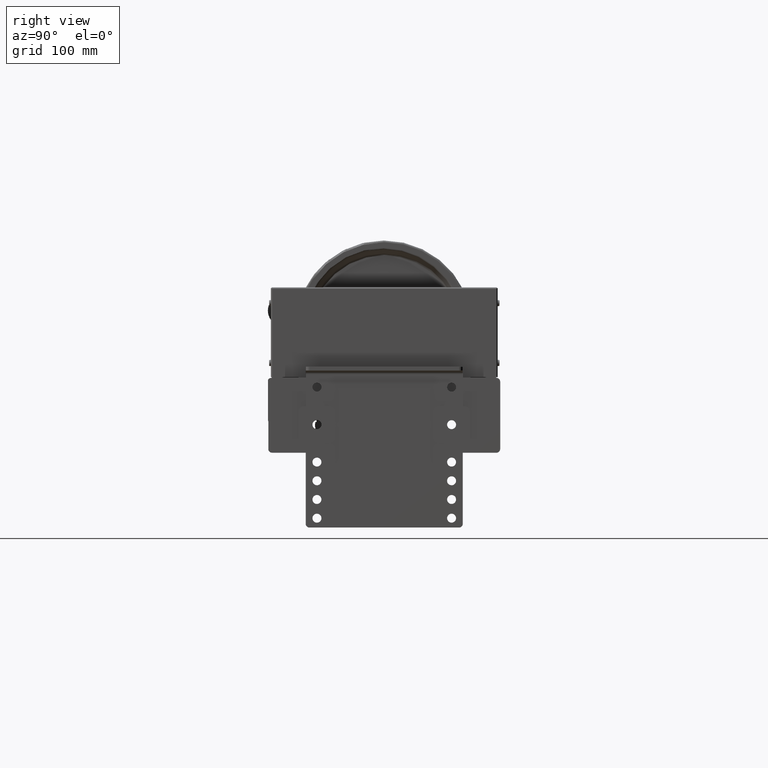
[diagram: clean part render]
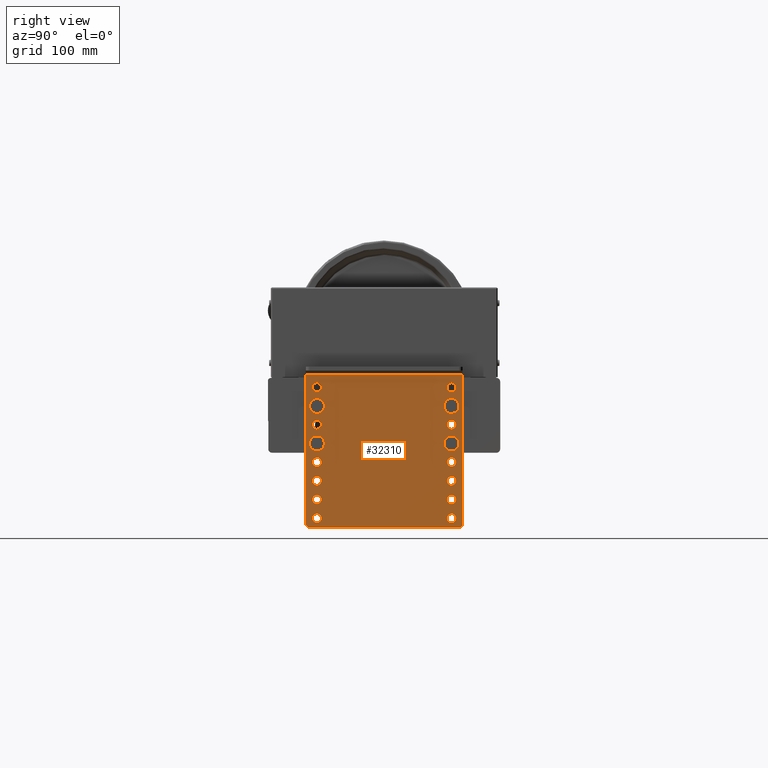
[diagram: same view with one face highlighted and labeled with its STEP entity id]
A machine part, right view. The second image highlights one B-rep face of the part: STEP entity #32310.
In plain terms, the highlighted planar face has unit normal (1, 0, 0).
Its self-contained STEP definition (entity closure, byte-faithful):
#31062=CARTESIAN_POINT('',(-80.957093014422583,-114.089066365486590,4.500000000000000));
#31063=VERTEX_POINT('',#31062);
#31072=CARTESIAN_POINT('',(-92.957093014422583,-114.089066365486590,4.500000000000000));
#31073=VERTEX_POINT('',#31072);
#31074=CARTESIAN_POINT('',(-86.957093014422583,-114.089066365486590,4.500000000000000));
#31075=DIRECTION('',(0.0,0.0,-1.0));
#31076=DIRECTION('',(1.0,0.0,0.0));
#31077=AXIS2_PLACEMENT_3D('',#31074,#31075,#31076);
#31078=CIRCLE('',#31077,6.0);
#31079=EDGE_CURVE('',#31073,#31063,#31078,.T.);
#31104=CARTESIAN_POINT('',(99.042906985577417,-114.089066365486590,4.500000000000000));
#31105=VERTEX_POINT('',#31104);
#31114=CARTESIAN_POINT('',(87.042906985577417,-114.089066365486590,4.500000000000000));
#31115=VERTEX_POINT('',#31114);
#31116=CARTESIAN_POINT('',(93.042906985577417,-114.089066365486590,4.500000000000000));
#31117=DIRECTION('',(0.0,0.0,-1.0));
#31118=DIRECTION('',(1.0,0.0,0.0));
#31119=AXIS2_PLACEMENT_3D('',#31116,#31117,#31118);
#31120=CIRCLE('',#31119,6.0);
#31121=EDGE_CURVE('',#31115,#31105,#31120,.T.);
#31146=CARTESIAN_POINT('',(-80.957093014422583,-89.089066365486588,4.500000000000000));
#31147=VERTEX_POINT('',#31146);
#31156=CARTESIAN_POINT('',(-92.957093014422583,-89.089066365486588,4.500000000000000));
#31157=VERTEX_POINT('',#31156);
#31158=CARTESIAN_POINT('',(-86.957093014422583,-89.089066365486588,4.500000000000000));
#31159=DIRECTION('',(0.0,0.0,-1.0));
#31160=DIRECTION('',(1.0,0.0,0.0));
#31161=AXIS2_PLACEMENT_3D('',#31158,#31159,#31160);
#31162=CIRCLE('',#31161,6.0);
#31163=EDGE_CURVE('',#31157,#31147,#31162,.T.);
#31188=CARTESIAN_POINT('',(99.042906985577417,-89.089066365486588,4.500000000000000));
#31189=VERTEX_POINT('',#31188);
#31198=CARTESIAN_POINT('',(87.042906985577417,-89.089066365486588,4.500000000000000));
#31199=VERTEX_POINT('',#31198);
#31200=CARTESIAN_POINT('',(93.042906985577417,-89.089066365486588,4.500000000000000));
#31201=DIRECTION('',(0.0,0.0,-1.0));
#31202=DIRECTION('',(1.0,0.0,0.0));
#31203=AXIS2_PLACEMENT_3D('',#31200,#31201,#31202);
#31204=CIRCLE('',#31203,6.0);
#31205=EDGE_CURVE('',#31199,#31189,#31204,.T.);
#31230=CARTESIAN_POINT('',(-80.957093014422568,-64.089066365486588,4.500000000000000));
#31231=VERTEX_POINT('',#31230);
#31240=CARTESIAN_POINT('',(-92.957093014422568,-64.089066365486588,4.500000000000000));
#31241=VERTEX_POINT('',#31240);
#31242=CARTESIAN_POINT('',(-86.957093014422568,-64.089066365486588,4.500000000000000));
#31243=DIRECTION('',(0.0,0.0,-1.0));
#31244=DIRECTION('',(1.0,0.0,0.0));
#31245=AXIS2_PLACEMENT_3D('',#31242,#31243,#31244);
#31246=CIRCLE('',#31245,6.0);
#31247=EDGE_CURVE('',#31241,#31231,#31246,.T.);
#31272=CARTESIAN_POINT('',(99.042906985577417,-64.089066365486588,4.500000000000000));
#31273=VERTEX_POINT('',#31272);
#31282=CARTESIAN_POINT('',(87.042906985577417,-64.089066365486588,4.500000000000000));
#31283=VERTEX_POINT('',#31282);
#31284=CARTESIAN_POINT('',(93.042906985577417,-64.089066365486588,4.500000000000000));
#31285=DIRECTION('',(0.0,0.0,-1.0));
#31286=DIRECTION('',(1.0,0.0,0.0));
#31287=AXIS2_PLACEMENT_3D('',#31284,#31285,#31286);
#31288=CIRCLE('',#31287,6.0);
#31289=EDGE_CURVE('',#31283,#31273,#31288,.T.);
#31314=CARTESIAN_POINT('',(-80.957093014422568,-39.089066365486588,4.500000000000000));
#31315=VERTEX_POINT('',#31314);
#31324=CARTESIAN_POINT('',(-92.957093014422568,-39.089066365486588,4.500000000000000));
#31325=VERTEX_POINT('',#31324);
#31326=CARTESIAN_POINT('',(-86.957093014422568,-39.089066365486588,4.500000000000000));
#31327=DIRECTION('',(0.0,0.0,-1.0));
#31328=DIRECTION('',(1.0,0.0,0.0));
#31329=AXIS2_PLACEMENT_3D('',#31326,#31327,#31328);
#31330=CIRCLE('',#31329,6.0);
#31331=EDGE_CURVE('',#31325,#31315,#31330,.T.);
#31356=CARTESIAN_POINT('',(99.042906985577446,-39.089066365486588,4.500000000000000));
#31357=VERTEX_POINT('',#31356);
#31366=CARTESIAN_POINT('',(87.042906985577446,-39.089066365486588,4.500000000000000));
#31367=VERTEX_POINT('',#31366);
#31368=CARTESIAN_POINT('',(93.042906985577446,-39.089066365486588,4.500000000000000));
#31369=DIRECTION('',(0.0,0.0,-1.0));
#31370=DIRECTION('',(1.0,0.0,0.0));
#31371=AXIS2_PLACEMENT_3D('',#31368,#31369,#31370);
#31372=CIRCLE('',#31371,6.0);
#31373=EDGE_CURVE('',#31367,#31357,#31372,.T.);
#31398=CARTESIAN_POINT('',(-80.957093014422554,-14.089066365486588,4.500000000000000));
#31399=VERTEX_POINT('',#31398);
#31408=CARTESIAN_POINT('',(-92.957093014422554,-14.089066365486588,4.500000000000000));
#31409=VERTEX_POINT('',#31408);
#31410=CARTESIAN_POINT('',(-86.957093014422554,-14.089066365486588,4.500000000000000));
#31411=DIRECTION('',(0.0,0.0,-1.0));
#31412=DIRECTION('',(1.0,0.0,0.0));
#31413=AXIS2_PLACEMENT_3D('',#31410,#31411,#31412);
#31414=CIRCLE('',#31413,6.0);
#31415=EDGE_CURVE('',#31409,#31399,#31414,.T.);
#31440=CARTESIAN_POINT('',(99.042906985577446,-14.089066365486588,4.500000000000000));
#31441=VERTEX_POINT('',#31440);
#31450=CARTESIAN_POINT('',(87.042906985577446,-14.089066365486588,4.500000000000000));
#31451=VERTEX_POINT('',#31450);
#31452=CARTESIAN_POINT('',(93.042906985577446,-14.089066365486588,4.500000000000000));
#31453=DIRECTION('',(0.0,0.0,-1.0));
#31454=DIRECTION('',(1.0,0.0,0.0));
#31455=AXIS2_PLACEMENT_3D('',#31452,#31453,#31454);
#31456=CIRCLE('',#31455,6.0);
#31457=EDGE_CURVE('',#31451,#31441,#31456,.T.);
#31482=CARTESIAN_POINT('',(-80.957093014422554,10.910933634513412,4.500000000000000));
#31483=VERTEX_POINT('',#31482);
#31492=CARTESIAN_POINT('',(-92.957093014422554,10.910933634513412,4.500000000000000));
#31493=VERTEX_POINT('',#31492);
#31494=CARTESIAN_POINT('',(-86.957093014422554,10.910933634513412,4.500000000000000));
#31495=DIRECTION('',(0.0,0.0,-1.0));
#31496=DIRECTION('',(1.0,0.0,0.0));
#31497=AXIS2_PLACEMENT_3D('',#31494,#31495,#31496);
#31498=CIRCLE('',#31497,6.0);
#31499=EDGE_CURVE('',#31493,#31483,#31498,.T.);
#31524=CARTESIAN_POINT('',(99.042906985577446,10.910933634513412,4.500000000000000));
#31525=VERTEX_POINT('',#31524);
#31534=CARTESIAN_POINT('',(87.042906985577446,10.910933634513412,4.500000000000000));
#31535=VERTEX_POINT('',#31534);
#31536=CARTESIAN_POINT('',(93.042906985577446,10.910933634513412,4.500000000000000));
#31537=DIRECTION('',(0.0,0.0,-1.0));
#31538=DIRECTION('',(1.0,0.0,0.0));
#31539=AXIS2_PLACEMENT_3D('',#31536,#31537,#31538);
#31540=CIRCLE('',#31539,6.0);
#31541=EDGE_CURVE('',#31535,#31525,#31540,.T.);
#31566=CARTESIAN_POINT('',(-80.957093014422554,35.910933634513412,4.500000000000000));
#31567=VERTEX_POINT('',#31566);
#31576=CARTESIAN_POINT('',(-92.957093014422554,35.910933634513412,4.500000000000000));
#31577=VERTEX_POINT('',#31576);
#31578=CARTESIAN_POINT('',(-86.957093014422554,35.910933634513412,4.500000000000000));
#31579=DIRECTION('',(0.0,0.0,-1.0));
#31580=DIRECTION('',(1.0,0.0,0.0));
#31581=AXIS2_PLACEMENT_3D('',#31578,#31579,#31580);
#31582=CIRCLE('',#31581,6.0);
#31583=EDGE_CURVE('',#31577,#31567,#31582,.T.);
#31608=CARTESIAN_POINT('',(99.042906985577446,35.910933634513412,4.500000000000000));
#31609=VERTEX_POINT('',#31608);
#31618=CARTESIAN_POINT('',(87.042906985577446,35.910933634513412,4.500000000000000));
#31619=VERTEX_POINT('',#31618);
#31620=CARTESIAN_POINT('',(93.042906985577446,35.910933634513412,4.500000000000000));
#31621=DIRECTION('',(0.0,0.0,-1.0));
#31622=DIRECTION('',(1.0,0.0,0.0));
#31623=AXIS2_PLACEMENT_3D('',#31620,#31621,#31622);
#31624=CIRCLE('',#31623,6.0);
#31625=EDGE_CURVE('',#31619,#31609,#31624,.T.);
#31650=CARTESIAN_POINT('',(-80.957093014422540,60.910933634513412,4.500000000000000));
#31651=VERTEX_POINT('',#31650);
#31660=CARTESIAN_POINT('',(-92.957093014422540,60.910933634513412,4.500000000000000));
#31661=VERTEX_POINT('',#31660);
#31662=CARTESIAN_POINT('',(-86.957093014422540,60.910933634513412,4.500000000000000));
#31663=DIRECTION('',(0.0,0.0,-1.0));
#31664=DIRECTION('',(1.0,0.0,0.0));
#31665=AXIS2_PLACEMENT_3D('',#31662,#31663,#31664);
#31666=CIRCLE('',#31665,6.0);
#31667=EDGE_CURVE('',#31661,#31651,#31666,.T.);
#31692=CARTESIAN_POINT('',(99.042906985577446,60.910933634513412,4.500000000000000));
#31693=VERTEX_POINT('',#31692);
#31702=CARTESIAN_POINT('',(87.042906985577446,60.910933634513412,4.500000000000000));
#31703=VERTEX_POINT('',#31702);
#31704=CARTESIAN_POINT('',(93.042906985577446,60.910933634513412,4.500000000000000));
#31705=DIRECTION('',(0.0,0.0,-1.0));
#31706=DIRECTION('',(1.0,0.0,0.0));
#31707=AXIS2_PLACEMENT_3D('',#31704,#31705,#31706);
#31708=CIRCLE('',#31707,6.0);
#31709=EDGE_CURVE('',#31703,#31693,#31708,.T.);
#31734=CARTESIAN_POINT('',(108.042906985577450,-121.589066365486590,4.500000000000000));
#31735=VERTEX_POINT('',#31734);
#31736=CARTESIAN_POINT('',(103.042906985577450,-126.589066365486590,4.500000000000000));
#31737=VERTEX_POINT('',#31736);
#31738=CARTESIAN_POINT('',(103.042906985577450,-121.589066365486590,4.500000000000000));
#31739=DIRECTION('',(0.0,0.0,-1.000000000000000));
#31740=DIRECTION('',(0.707106781186547,-0.707106781186547,0.0));
#31741=AXIS2_PLACEMENT_3D('',#31738,#31739,#31740);
#31742=CIRCLE('',#31741,4.999999999999999);
#31743=EDGE_CURVE('',#31735,#31737,#31742,.T.);
#31818=CARTESIAN_POINT('',(108.042906985577450,78.410933634513441,4.500000000000000));
#31819=VERTEX_POINT('',#31818);
#31827=CARTESIAN_POINT('',(108.042906985577450,78.410933634513441,4.500000000000000));
#31828=DIRECTION('',(0.0,-1.0,0.0));
#31829=VECTOR('',#31828,200.000000000000030);
#31830=LINE('',#31827,#31829);
#31831=EDGE_CURVE('',#31819,#31735,#31830,.T.);
#32042=CARTESIAN_POINT('',(-96.957093014422583,-126.589066365486590,4.500000000000000));
#32043=VERTEX_POINT('',#32042);
#32044=CARTESIAN_POINT('',(-101.957093014422580,-121.589066365486590,4.500000000000000));
#32045=VERTEX_POINT('',#32044);
#32046=CARTESIAN_POINT('',(-96.957093014422583,-121.589066365486590,4.500000000000000));
#32047=DIRECTION('',(0.0,0.0,-1.000000000000000));
#32048=DIRECTION('',(-0.707106781186547,-0.707106781186547,0.0));
#32049=AXIS2_PLACEMENT_3D('',#32046,#32047,#32048);
#32050=CIRCLE('',#32049,4.999999999999999);
#32051=EDGE_CURVE('',#32043,#32045,#32050,.T.);
#32075=CARTESIAN_POINT('',(-101.957093014422580,78.410933634513441,4.500000000000000));
#32076=VERTEX_POINT('',#32075);
#32077=CARTESIAN_POINT('',(-101.957093014422580,-121.589066365486590,4.500000000000000));
#32078=DIRECTION('',(0.0,1.0,0.0));
#32079=VECTOR('',#32078,200.000000000000030);
#32080=LINE('',#32077,#32079);
#32081=EDGE_CURVE('',#32045,#32076,#32080,.T.);
#32127=CARTESIAN_POINT('',(3.042906985577439,-19.089066365486580,4.500000000000000));
#32128=DIRECTION('',(0.0,0.0,1.0));
#32129=DIRECTION('',(1.0,0.0,0.0));
#32130=AXIS2_PLACEMENT_3D('',#32127,#32128,#32129);
#32131=PLANE('',#32130);
#32132=ORIENTED_EDGE('',*,*,#31743,.F.);
#32133=ORIENTED_EDGE('',*,*,#31831,.F.);
#32134=CARTESIAN_POINT('',(-101.957093014422580,78.410933634513441,4.500000000000000));
#32135=DIRECTION('',(1.0,0.0,0.0));
#32136=VECTOR('',#32135,210.000000000000030);
#32137=LINE('',#32134,#32136);
#32138=EDGE_CURVE('',#32076,#31819,#32137,.T.);
#32139=ORIENTED_EDGE('',*,*,#32138,.F.);
#32140=ORIENTED_EDGE('',*,*,#32081,.F.);
#32141=ORIENTED_EDGE('',*,*,#32051,.F.);
#32142=CARTESIAN_POINT('',(103.042906985577450,-126.589066365486590,4.500000000000000));
#32143=DIRECTION('',(-1.0,0.0,0.0));
#32144=VECTOR('',#32143,200.000000000000030);
#32145=LINE('',#32142,#32144);
#32146=EDGE_CURVE('',#31737,#32043,#32145,.T.);
#32147=ORIENTED_EDGE('',*,*,#32146,.F.);
#32148=EDGE_LOOP('',(#32132,#32133,#32139,#32140,#32141,#32147));
#32149=FACE_OUTER_BOUND('',#32148,.T.);
#32150=CARTESIAN_POINT('',(-86.957093014422583,-114.089066365486590,4.500000000000000));
#32151=DIRECTION('',(0.0,0.0,-1.0));
#32152=DIRECTION('',(1.0,0.0,0.0));
#32153=AXIS2_PLACEMENT_3D('',#32150,#32151,#32152);
#32154=CIRCLE('',#32153,6.0);
#32155=EDGE_CURVE('',#31063,#31073,#32154,.T.);
#32156=ORIENTED_EDGE('',*,*,#32155,.T.);
#32157=ORIENTED_EDGE('',*,*,#31079,.T.);
#32158=EDGE_LOOP('',(#32156,#32157));
#32159=FACE_BOUND('',#32158,.T.);
#32160=CARTESIAN_POINT('',(93.042906985577417,-114.089066365486590,4.500000000000000));
#32161=DIRECTION('',(0.0,0.0,-1.0));
#32162=DIRECTION('',(1.0,0.0,0.0));
#32163=AXIS2_PLACEMENT_3D('',#32160,#32161,#32162);
#32164=CIRCLE('',#32163,6.0);
#32165=EDGE_CURVE('',#31105,#31115,#32164,.T.);
#32166=ORIENTED_EDGE('',*,*,#32165,.T.);
#32167=ORIENTED_EDGE('',*,*,#31121,.T.);
#32168=EDGE_LOOP('',(#32166,#32167));
#32169=FACE_BOUND('',#32168,.T.);
#32170=CARTESIAN_POINT('',(-86.957093014422583,-89.089066365486588,4.500000000000000));
#32171=DIRECTION('',(0.0,0.0,-1.0));
#32172=DIRECTION('',(1.0,0.0,0.0));
#32173=AXIS2_PLACEMENT_3D('',#32170,#32171,#32172);
#32174=CIRCLE('',#32173,6.0);
#32175=EDGE_CURVE('',#31147,#31157,#32174,.T.);
#32176=ORIENTED_EDGE('',*,*,#32175,.T.);
#32177=ORIENTED_EDGE('',*,*,#31163,.T.);
#32178=EDGE_LOOP('',(#32176,#32177));
#32179=FACE_BOUND('',#32178,.T.);
#32180=CARTESIAN_POINT('',(93.042906985577417,-89.089066365486588,4.500000000000000));
#32181=DIRECTION('',(0.0,0.0,-1.0));
#32182=DIRECTION('',(1.0,0.0,0.0));
#32183=AXIS2_PLACEMENT_3D('',#32180,#32181,#32182);
#32184=CIRCLE('',#32183,6.0);
#32185=EDGE_CURVE('',#31189,#31199,#32184,.T.);
#32186=ORIENTED_EDGE('',*,*,#32185,.T.);
#32187=ORIENTED_EDGE('',*,*,#31205,.T.);
#32188=EDGE_LOOP('',(#32186,#32187));
#32189=FACE_BOUND('',#32188,.T.);
#32190=CARTESIAN_POINT('',(-86.957093014422568,-64.089066365486588,4.500000000000000));
#32191=DIRECTION('',(0.0,0.0,-1.0));
#32192=DIRECTION('',(1.0,0.0,0.0));
#32193=AXIS2_PLACEMENT_3D('',#32190,#32191,#32192);
#32194=CIRCLE('',#32193,6.0);
#32195=EDGE_CURVE('',#31231,#31241,#32194,.T.);
#32196=ORIENTED_EDGE('',*,*,#32195,.T.);
#32197=ORIENTED_EDGE('',*,*,#31247,.T.);
#32198=EDGE_LOOP('',(#32196,#32197));
#32199=FACE_BOUND('',#32198,.T.);
#32200=CARTESIAN_POINT('',(93.042906985577417,-64.089066365486588,4.500000000000000));
#32201=DIRECTION('',(0.0,0.0,-1.0));
#32202=DIRECTION('',(1.0,0.0,0.0));
#32203=AXIS2_PLACEMENT_3D('',#32200,#32201,#32202);
#32204=CIRCLE('',#32203,6.0);
#32205=EDGE_CURVE('',#31273,#31283,#32204,.T.);
#32206=ORIENTED_EDGE('',*,*,#32205,.T.);
#32207=ORIENTED_EDGE('',*,*,#31289,.T.);
#32208=EDGE_LOOP('',(#32206,#32207));
#32209=FACE_BOUND('',#32208,.T.);
#32210=CARTESIAN_POINT('',(-86.957093014422568,-39.089066365486588,4.500000000000000));
#32211=DIRECTION('',(0.0,0.0,-1.0));
#32212=DIRECTION('',(1.0,0.0,0.0));
#32213=AXIS2_PLACEMENT_3D('',#32210,#32211,#32212);
#32214=CIRCLE('',#32213,6.0);
#32215=EDGE_CURVE('',#31315,#31325,#32214,.T.);
#32216=ORIENTED_EDGE('',*,*,#32215,.T.);
#32217=ORIENTED_EDGE('',*,*,#31331,.T.);
#32218=EDGE_LOOP('',(#32216,#32217));
#32219=FACE_BOUND('',#32218,.T.);
#32220=CARTESIAN_POINT('',(93.042906985577446,-39.089066365486588,4.500000000000000));
#32221=DIRECTION('',(0.0,0.0,-1.0));
#32222=DIRECTION('',(1.0,0.0,0.0));
#32223=AXIS2_PLACEMENT_3D('',#32220,#32221,#32222);
#32224=CIRCLE('',#32223,6.0);
#32225=EDGE_CURVE('',#31357,#31367,#32224,.T.);
#32226=ORIENTED_EDGE('',*,*,#32225,.T.);
#32227=ORIENTED_EDGE('',*,*,#31373,.T.);
#32228=EDGE_LOOP('',(#32226,#32227));
#32229=FACE_BOUND('',#32228,.T.);
#32230=CARTESIAN_POINT('',(-86.957093014422554,-14.089066365486588,4.500000000000000));
#32231=DIRECTION('',(0.0,0.0,-1.0));
#32232=DIRECTION('',(1.0,0.0,0.0));
#32233=AXIS2_PLACEMENT_3D('',#32230,#32231,#32232);
#32234=CIRCLE('',#32233,6.0);
#32235=EDGE_CURVE('',#31399,#31409,#32234,.T.);
#32236=ORIENTED_EDGE('',*,*,#32235,.T.);
#32237=ORIENTED_EDGE('',*,*,#31415,.T.);
#32238=EDGE_LOOP('',(#32236,#32237));
#32239=FACE_BOUND('',#32238,.T.);
#32240=CARTESIAN_POINT('',(93.042906985577446,-14.089066365486588,4.500000000000000));
#32241=DIRECTION('',(0.0,0.0,-1.0));
#32242=DIRECTION('',(1.0,0.0,0.0));
#32243=AXIS2_PLACEMENT_3D('',#32240,#32241,#32242);
#32244=CIRCLE('',#32243,6.0);
#32245=EDGE_CURVE('',#31441,#31451,#32244,.T.);
#32246=ORIENTED_EDGE('',*,*,#32245,.T.);
#32247=ORIENTED_EDGE('',*,*,#31457,.T.);
#32248=EDGE_LOOP('',(#32246,#32247));
#32249=FACE_BOUND('',#32248,.T.);
#32250=CARTESIAN_POINT('',(-86.957093014422554,10.910933634513412,4.500000000000000));
#32251=DIRECTION('',(0.0,0.0,-1.0));
#32252=DIRECTION('',(1.0,0.0,0.0));
#32253=AXIS2_PLACEMENT_3D('',#32250,#32251,#32252);
#32254=CIRCLE('',#32253,6.0);
#32255=EDGE_CURVE('',#31483,#31493,#32254,.T.);
#32256=ORIENTED_EDGE('',*,*,#32255,.T.);
#32257=ORIENTED_EDGE('',*,*,#31499,.T.);
#32258=EDGE_LOOP('',(#32256,#32257));
#32259=FACE_BOUND('',#32258,.T.);
#32260=CARTESIAN_POINT('',(93.042906985577446,10.910933634513412,4.500000000000000));
#32261=DIRECTION('',(0.0,0.0,-1.0));
#32262=DIRECTION('',(1.0,0.0,0.0));
#32263=AXIS2_PLACEMENT_3D('',#32260,#32261,#32262);
#32264=CIRCLE('',#32263,6.0);
#32265=EDGE_CURVE('',#31525,#31535,#32264,.T.);
#32266=ORIENTED_EDGE('',*,*,#32265,.T.);
#32267=ORIENTED_EDGE('',*,*,#31541,.T.);
#32268=EDGE_LOOP('',(#32266,#32267));
#32269=FACE_BOUND('',#32268,.T.);
#32270=CARTESIAN_POINT('',(-86.957093014422554,35.910933634513412,4.500000000000000));
#32271=DIRECTION('',(0.0,0.0,-1.0));
#32272=DIRECTION('',(1.0,0.0,0.0));
#32273=AXIS2_PLACEMENT_3D('',#32270,#32271,#32272);
#32274=CIRCLE('',#32273,6.0);
#32275=EDGE_CURVE('',#31567,#31577,#32274,.T.);
#32276=ORIENTED_EDGE('',*,*,#32275,.T.);
#32277=ORIENTED_EDGE('',*,*,#31583,.T.);
#32278=EDGE_LOOP('',(#32276,#32277));
#32279=FACE_BOUND('',#32278,.T.);
#32280=CARTESIAN_POINT('',(93.042906985577446,35.910933634513412,4.500000000000000));
#32281=DIRECTION('',(0.0,0.0,-1.0));
#32282=DIRECTION('',(1.0,0.0,0.0));
#32283=AXIS2_PLACEMENT_3D('',#32280,#32281,#32282);
#32284=CIRCLE('',#32283,6.0);
#32285=EDGE_CURVE('',#31609,#31619,#32284,.T.);
#32286=ORIENTED_EDGE('',*,*,#32285,.T.);
#32287=ORIENTED_EDGE('',*,*,#31625,.T.);
#32288=EDGE_LOOP('',(#32286,#32287));
#32289=FACE_BOUND('',#32288,.T.);
#32290=CARTESIAN_POINT('',(-86.957093014422540,60.910933634513412,4.500000000000000));
#32291=DIRECTION('',(0.0,0.0,-1.0));
#32292=DIRECTION('',(1.0,0.0,0.0));
#32293=AXIS2_PLACEMENT_3D('',#32290,#32291,#32292);
#32294=CIRCLE('',#32293,6.0);
#32295=EDGE_CURVE('',#31651,#31661,#32294,.T.);
#32296=ORIENTED_EDGE('',*,*,#32295,.T.);
#32297=ORIENTED_EDGE('',*,*,#31667,.T.);
#32298=EDGE_LOOP('',(#32296,#32297));
#32299=FACE_BOUND('',#32298,.T.);
#32300=CARTESIAN_POINT('',(93.042906985577446,60.910933634513412,4.500000000000000));
#32301=DIRECTION('',(0.0,0.0,-1.0));
#32302=DIRECTION('',(1.0,0.0,0.0));
#32303=AXIS2_PLACEMENT_3D('',#32300,#32301,#32302);
#32304=CIRCLE('',#32303,6.0);
#32305=EDGE_CURVE('',#31693,#31703,#32304,.T.);
#32306=ORIENTED_EDGE('',*,*,#32305,.T.);
#32307=ORIENTED_EDGE('',*,*,#31709,.T.);
#32308=EDGE_LOOP('',(#32306,#32307));
#32309=FACE_BOUND('',#32308,.T.);
#32310=ADVANCED_FACE('',(#32149,#32159,#32169,#32179,#32189,#32199,#32209,#32219,#32229,#32239,#32249,#32259,#32269,#32279,#32289,#32299,#32309),#32131,.T.);